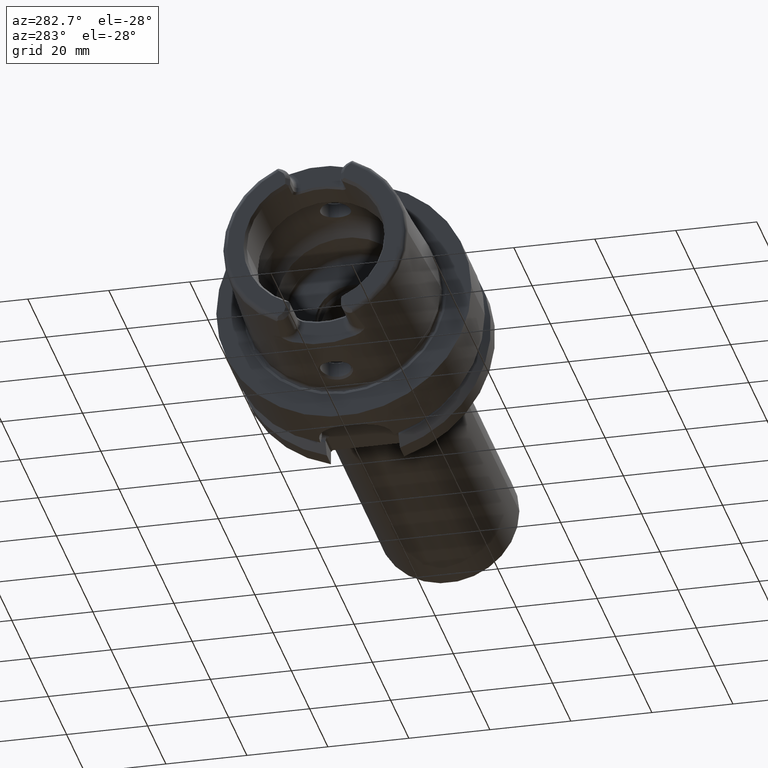
[diagram: clean part render]
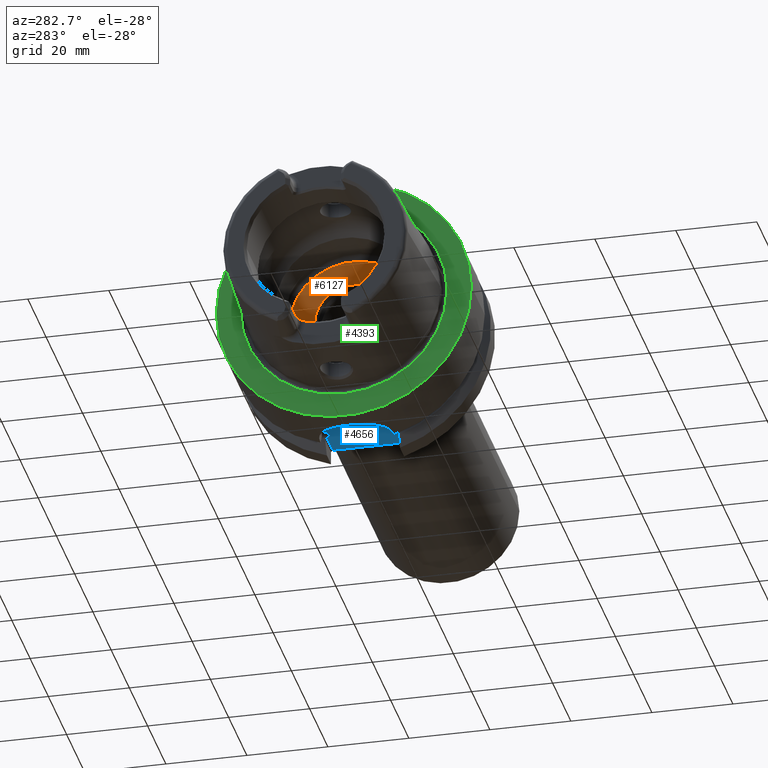
[diagram: same view with three faces highlighted in distinct colors, each labeled with its STEP entity id]
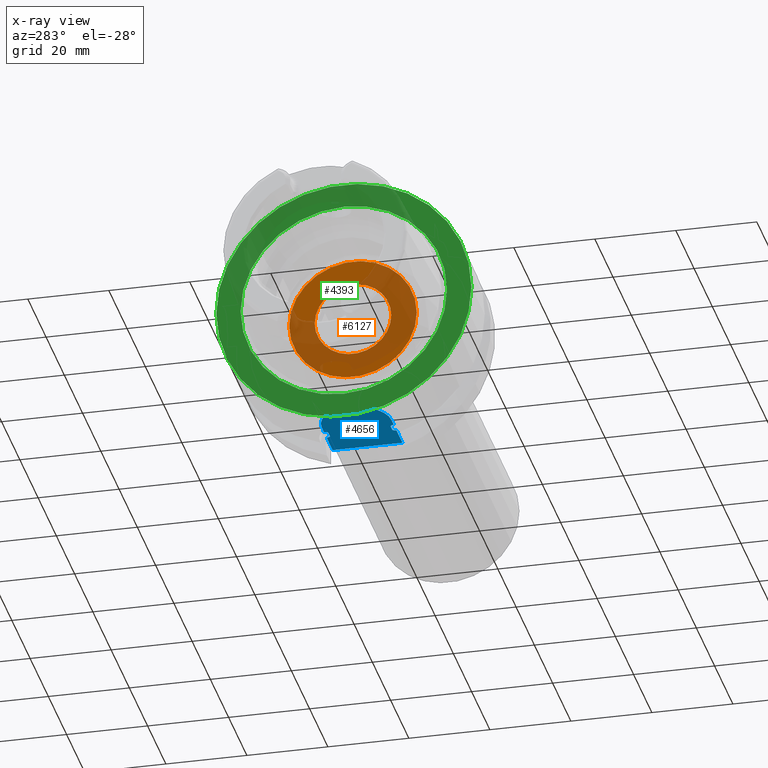
[diagram: x-ray of the same camera — body ghosted, the three highlighted faces saturated]
A machine part, auxiliary view with three faces highlighted in distinct colors.
The next image is the same camera in x-ray (body ghosted, the three faces saturated) — at least one of them is partly hidden behind the body in this view.
Their STEP definitions:

[orange] entity #6127 — the highlighted planar face has unit normal (1, 0, 0).
#2454=CARTESIAN_POINT('',(1.E1,0.E0,0.E0));
#2455=DIRECTION('',(1.E0,0.E0,0.E0));
#2456=DIRECTION('',(0.E0,1.E0,0.E0));
#2457=AXIS2_PLACEMENT_3D('',#2454,#2455,#2456);
#2464=CARTESIAN_POINT('',(1.E1,0.E0,0.E0));
#2465=DIRECTION('',(-1.E0,0.E0,0.E0));
#2466=DIRECTION('',(0.E0,1.E0,0.E0));
#2467=AXIS2_PLACEMENT_3D('',#2464,#2465,#2466);
#2474=CARTESIAN_POINT('',(1.E1,0.E0,0.E0));
#2475=DIRECTION('',(1.E0,0.E0,0.E0));
#2476=DIRECTION('',(0.E0,1.E0,0.E0));
#2477=AXIS2_PLACEMENT_3D('',#2474,#2475,#2476);
#2479=CARTESIAN_POINT('',(1.E1,0.E0,0.E0));
#2480=DIRECTION('',(1.E0,0.E0,0.E0));
#2481=DIRECTION('',(0.E0,-1.E0,0.E0));
#2482=AXIS2_PLACEMENT_3D('',#2479,#2480,#2481);
#2682=CARTESIAN_POINT('',(1.E1,1.575E1,0.E0));
#2684=VERTEX_POINT('',#2682);
#2686=CARTESIAN_POINT('',(1.E1,-1.575E1,0.E0));
#2688=VERTEX_POINT('',#2686);
#2933=CARTESIAN_POINT('',(1.E1,9.451175134595E0,0.E0));
#2934=CARTESIAN_POINT('',(1.E1,-9.451175134595E0,0.E0));
#2935=VERTEX_POINT('',#2933);
#2936=VERTEX_POINT('',#2934);
#6112=CARTESIAN_POINT('',(1.E1,0.E0,0.E0));
#6113=DIRECTION('',(1.E0,0.E0,0.E0));
#6114=DIRECTION('',(0.E0,-1.E0,0.E0));
#6115=AXIS2_PLACEMENT_3D('',#6112,#6113,#6114);
#6116=PLANE('',#6115);
#6117=ORIENTED_EDGE('',*,*,#6094,.T.);
#6118=ORIENTED_EDGE('',*,*,#6105,.F.);
#6119=EDGE_LOOP('',(#6117,#6118));
#6120=FACE_OUTER_BOUND('',#6119,.F.);
#6122=ORIENTED_EDGE('',*,*,#6121,.F.);
#6124=ORIENTED_EDGE('',*,*,#6123,.F.);
#6125=EDGE_LOOP('',(#6122,#6124));
#6126=FACE_BOUND('',#6125,.F.);
#6127=ADVANCED_FACE('',(#6120,#6126),#6116,.F.);
#2458=CIRCLE('',#2457,1.575E1);
#2468=CIRCLE('',#2467,1.575E1);
#2478=CIRCLE('',#2477,9.451175134595E0);
#2483=CIRCLE('',#2482,9.451175134595E0);
#6094=EDGE_CURVE('',#2684,#2688,#2458,.T.);
#6105=EDGE_CURVE('',#2684,#2688,#2468,.T.);
#6121=EDGE_CURVE('',#2935,#2936,#2478,.T.);
#6123=EDGE_CURVE('',#2936,#2935,#2483,.T.);

[blue] entity #4656 — the highlighted planar face has unit normal (0, 0, -1).
#1222=CARTESIAN_POINT('',(1.7125E1,7.7E0,-2.64E1));
#1223=CARTESIAN_POINT('',(1.709612257646E1,7.7E0,-2.64E1));
#1224=CARTESIAN_POINT('',(1.703809054195E1,7.708549788548E0,-2.64E1));
#1225=CARTESIAN_POINT('',(1.694576354836E1,7.752741855764E0,-2.64E1));
#1226=CARTESIAN_POINT('',(1.686145167985E1,7.821144618954E0,-2.64E1));
#1227=CARTESIAN_POINT('',(1.678169591401E1,7.910255407197E0,-2.64E1));
#1228=CARTESIAN_POINT('',(1.670585865658E1,8.018731508895E0,-2.64E1));
#1229=CARTESIAN_POINT('',(1.663386002384E1,8.144595739092E0,-2.64E1));
#1230=CARTESIAN_POINT('',(1.656565613315E1,8.286316729889E0,-2.64E1));
#1231=CARTESIAN_POINT('',(1.650080228847E1,8.443935370899E0,-2.64E1));
#1232=CARTESIAN_POINT('',(1.646027482334E1,8.558057187343E0,-2.64E1));
#1233=CARTESIAN_POINT('',(1.644062313526E1,8.6175E0,-2.64E1));
#1296=CARTESIAN_POINT('',(1.644062313526E1,-8.6175E0,-2.64E1));
#1297=CARTESIAN_POINT('',(1.646078603879E1,-8.556510852770E0,-2.64E1));
#1298=CARTESIAN_POINT('',(1.650227386064E1,-8.439948273349E0,-2.64E1));
#1299=CARTESIAN_POINT('',(1.656805348335E1,-8.280864278287E0,-2.64E1));
#1300=CARTESIAN_POINT('',(1.663684500818E1,-8.138886080904E0,-2.64E1));
#1301=CARTESIAN_POINT('',(1.670898389576E1,-8.013810014671E0,-2.64E1));
#1302=CARTESIAN_POINT('',(1.678453793855E1,-7.906721865662E0,-2.64E1));
#1303=CARTESIAN_POINT('',(1.686362062870E1,-7.819127635624E0,-2.64E1));
#1304=CARTESIAN_POINT('',(1.694730615110E1,-7.751879650101E0,-2.64E1));
#1305=CARTESIAN_POINT('',(1.703817130297E1,-7.708637437381E0,-2.64E1));
#1306=CARTESIAN_POINT('',(1.709608612766E1,-7.7E0,-2.64E1));
#1307=CARTESIAN_POINT('',(1.7125E1,-7.7E0,-2.64E1));
#1341=CARTESIAN_POINT('',(1.955937686474E1,8.6175E0,-2.64E1));
#1347=CARTESIAN_POINT('',(1.955937686474E1,8.6175E0,-2.64E1));
#1348=CARTESIAN_POINT('',(1.953933692943E1,8.556882809475E0,-2.64E1));
#1349=CARTESIAN_POINT('',(1.949803643853E1,8.440751828791E0,-2.64E1));
#1350=CARTESIAN_POINT('',(1.943198239289E1,8.280902876688E0,-2.64E1));
#1351=CARTESIAN_POINT('',(1.936289962713E1,8.138372043109E0,-2.64E1));
#1352=CARTESIAN_POINT('',(1.929044179409E1,8.012872381152E0,-2.64E1));
#1353=CARTESIAN_POINT('',(1.921473346325E1,7.905832703978E0,-2.64E1));
#1354=CARTESIAN_POINT('',(1.913579091836E1,7.818493807110E0,-2.64E1));
#1355=CARTESIAN_POINT('',(1.905155273254E1,7.751296731883E0,-2.64E1));
#1356=CARTESIAN_POINT('',(1.896325315553E1,7.709235333598E0,-2.64E1));
#1357=CARTESIAN_POINT('',(1.890455004185E1,7.7E0,-2.64E1));
#1358=CARTESIAN_POINT('',(1.8875E1,7.7E0,-2.64E1));
#1418=CARTESIAN_POINT('',(1.8875E1,-7.7E0,-2.64E1));
#1419=CARTESIAN_POINT('',(1.890473731311E1,-7.7E0,-2.64E1));
#1420=CARTESIAN_POINT('',(1.896439553552E1,-7.709074097953E0,-2.64E1));
#1421=CARTESIAN_POINT('',(1.905895356645E1,-7.755593365771E0,-2.64E1));
#1422=CARTESIAN_POINT('',(1.914506350406E1,-7.827325160610E0,-2.64E1));
#1423=CARTESIAN_POINT('',(1.922569730521E1,-7.919730067314E0,-2.64E1));
#1424=CARTESIAN_POINT('',(1.930098420168E1,-8.029803274102E0,-2.64E1));
#1425=CARTESIAN_POINT('',(1.937115269578E1,-8.154449512708E0,-2.64E1));
#1426=CARTESIAN_POINT('',(1.943699388158E1,-8.292566470765E0,-2.64E1));
#1427=CARTESIAN_POINT('',(1.949974575456E1,-8.445548604297E0,-2.64E1));
#1428=CARTESIAN_POINT('',(1.953984256144E1,-8.558412255131E0,-2.64E1));
#1429=CARTESIAN_POINT('',(1.955937686474E1,-8.6175E0,-2.64E1));
#1461=DIRECTION('',(1.E0,0.E0,0.E0));
#1462=VECTOR('',#1461,6.440623135263E0);
#1463=CARTESIAN_POINT('',(1.955937686474E1,8.6175E0,-2.64E1));
#1464=LINE('',#1463,#1462);
#1465=DIRECTION('',(-9.999999999999E-1,-2.676307863714E-7,-2.675980536163E-7));
#1466=VECTOR('',#1465,2.473123130251E0);
#1467=CARTESIAN_POINT('',(1.644062313526E1,8.6175E0,-2.64E1));
#1468=LINE('',#1467,#1466);
#1469=CARTESIAN_POINT('',(1.39675E1,-2.131628207280E-14,-2.640000139113E1));
#1470=DIRECTION('',(0.E0,0.E0,1.E0));
#1471=DIRECTION('',(-1.030668622693E-14,1.E0,0.E0));
#1472=AXIS2_PLACEMENT_3D('',#1469,#1470,#1471);
#1474=DIRECTION('',(9.999999999999E-1,-2.676237429886E-7,2.676050896565E-7));
#1475=VECTOR('',#1474,2.473123130989E0);
#1476=CARTESIAN_POINT('',(1.396750000427E1,-8.617499338134E0,
-2.640000066182E1));
#1477=LINE('',#1476,#1475);
#1478=DIRECTION('',(-1.E0,0.E0,0.E0));
#1479=VECTOR('',#1478,6.440623135263E0);
#1480=CARTESIAN_POINT('',(2.6E1,-8.6175E0,-2.64E1));
#1481=LINE('',#1480,#1479);
#1482=DIRECTION('',(1.E0,0.E0,0.E0));
#1483=VECTOR('',#1482,1.75E0);
#1484=CARTESIAN_POINT('',(1.7125E1,-7.7E0,-2.64E1));
#1485=LINE('',#1484,#1483);
#1495=DIRECTION('',(1.E0,0.E0,0.E0));
#1496=VECTOR('',#1495,1.75E0);
#1497=CARTESIAN_POINT('',(1.7125E1,7.7E0,-2.64E1));
#1498=LINE('',#1497,#1496);
#1700=DIRECTION('',(0.E0,-1.E0,0.E0));
#1701=VECTOR('',#1700,1.7235E1);
#1702=CARTESIAN_POINT('',(2.6E1,8.6175E0,-2.64E1));
#1703=LINE('',#1702,#1701);
#1873=CARTESIAN_POINT('',(1.644062313526E1,-8.6175E0,-2.64E1));
#1883=CARTESIAN_POINT('',(1.644062313526E1,8.6175E0,-2.64E1));
#2949=VERTEX_POINT('',#1883);
#2952=VERTEX_POINT('',#1873);
#2954=VERTEX_POINT('',#1341);
#2955=CARTESIAN_POINT('',(2.6E1,8.6175E0,-2.64E1));
#2957=VERTEX_POINT('',#2955);
#2960=CARTESIAN_POINT('',(2.6E1,-8.6175E0,-2.64E1));
#2962=VERTEX_POINT('',#2960);
#2963=CARTESIAN_POINT('',(1.955937686474E1,-8.6175E0,-2.64E1));
#2964=VERTEX_POINT('',#2963);
#2967=CARTESIAN_POINT('',(1.396750000427E1,-8.617499338134E0,
-2.640000066182E1));
#2968=VERTEX_POINT('',#2967);
#2973=CARTESIAN_POINT('',(1.396750000501E1,8.617499338116E0,-2.640000066180E1));
#2974=VERTEX_POINT('',#2973);
#3041=CARTESIAN_POINT('',(1.7125E1,-7.7E0,-2.64E1));
#3042=CARTESIAN_POINT('',(1.8875E1,-7.7E0,-2.64E1));
#3043=VERTEX_POINT('',#3041);
#3044=VERTEX_POINT('',#3042);
#3045=CARTESIAN_POINT('',(1.7125E1,7.7E0,-2.64E1));
#3046=CARTESIAN_POINT('',(1.8875E1,7.7E0,-2.64E1));
#3047=VERTEX_POINT('',#3045);
#3048=VERTEX_POINT('',#3046);
#4630=CARTESIAN_POINT('',(0.E0,0.E0,-2.64E1));
#4631=DIRECTION('',(0.E0,0.E0,-1.E0));
#4632=DIRECTION('',(1.E0,0.E0,0.E0));
#4633=AXIS2_PLACEMENT_3D('',#4630,#4631,#4632);
#4634=PLANE('',#4633);
#4635=ORIENTED_EDGE('',*,*,#4572,.F.);
#4636=ORIENTED_EDGE('',*,*,#4585,.T.);
#4638=ORIENTED_EDGE('',*,*,#4637,.F.);
#4639=ORIENTED_EDGE('',*,*,#4484,.T.);
#4641=ORIENTED_EDGE('',*,*,#4640,.T.);
#4643=ORIENTED_EDGE('',*,*,#4642,.T.);
#4645=ORIENTED_EDGE('',*,*,#4644,.T.);
#4646=ORIENTED_EDGE('',*,*,#4515,.T.);
#4648=ORIENTED_EDGE('',*,*,#4647,.T.);
#4649=ORIENTED_EDGE('',*,*,#4617,.T.);
#4651=ORIENTED_EDGE('',*,*,#4650,.F.);
#4653=ORIENTED_EDGE('',*,*,#4652,.F.);
#4654=EDGE_LOOP('',(#4635,#4636,#4638,#4639,#4641,#4643,#4645,#4646,#4648,#4649,
#4651,#4653));
#4655=FACE_OUTER_BOUND('',#4654,.F.);
#4656=ADVANCED_FACE('',(#4655),#4634,.T.);
#1234=B_SPLINE_CURVE_WITH_KNOTS('',3,(#1222,#1223,#1224,#1225,#1226,#1227,#1228,
#1229,#1230,#1231,#1232,#1233),.UNSPECIFIED.,.F.,.F.,(4,1,1,1,1,1,1,1,1,4),
(0.E0,1.111111111111E-1,2.222222222222E-1,3.333333333333E-1,4.444444444444E-1,
5.555555555556E-1,6.666666666667E-1,7.777777777778E-1,8.888888888889E-1,1.E0),
.UNSPECIFIED.);
#1308=B_SPLINE_CURVE_WITH_KNOTS('',3,(#1296,#1297,#1298,#1299,#1300,#1301,#1302,
#1303,#1304,#1305,#1306,#1307),.UNSPECIFIED.,.F.,.F.,(4,1,1,1,1,1,1,1,1,4),
(0.E0,1.111111111111E-1,2.222222222222E-1,3.333333333333E-1,4.444444444444E-1,
5.555555555556E-1,6.666666666667E-1,7.777777777778E-1,8.888888888889E-1,1.E0),
.UNSPECIFIED.);
#1359=B_SPLINE_CURVE_WITH_KNOTS('',3,(#1347,#1348,#1349,#1350,#1351,#1352,#1353,
#1354,#1355,#1356,#1357,#1358),.UNSPECIFIED.,.F.,.F.,(4,1,1,1,1,1,1,1,1,4),
(0.E0,1.111111111111E-1,2.222222222222E-1,3.333333333333E-1,4.444444444444E-1,
5.555555555556E-1,6.666666666667E-1,7.777777777778E-1,8.888888888889E-1,1.E0),
.UNSPECIFIED.);
#1430=B_SPLINE_CURVE_WITH_KNOTS('',3,(#1418,#1419,#1420,#1421,#1422,#1423,#1424,
#1425,#1426,#1427,#1428,#1429),.UNSPECIFIED.,.F.,.F.,(4,1,1,1,1,1,1,1,1,4),
(0.E0,1.111111111111E-1,2.222222222222E-1,3.333333333333E-1,4.444444444444E-1,
5.555555555556E-1,6.666666666667E-1,7.777777777778E-1,8.888888888889E-1,1.E0),
.UNSPECIFIED.);
#1473=CIRCLE('',#1472,8.617497420067E0);
#4484=EDGE_CURVE('',#3047,#2949,#1234,.T.);
#4515=EDGE_CURVE('',#2952,#3043,#1308,.T.);
#4572=EDGE_CURVE('',#2954,#2957,#1464,.T.);
#4585=EDGE_CURVE('',#2954,#3048,#1359,.T.);
#4617=EDGE_CURVE('',#3044,#2964,#1430,.T.);
#4637=EDGE_CURVE('',#3047,#3048,#1498,.T.);
#4640=EDGE_CURVE('',#2949,#2974,#1468,.T.);
#4642=EDGE_CURVE('',#2974,#2968,#1473,.T.);
#4644=EDGE_CURVE('',#2968,#2952,#1477,.T.);
#4647=EDGE_CURVE('',#3043,#3044,#1485,.T.);
#4650=EDGE_CURVE('',#2962,#2964,#1481,.T.);
#4652=EDGE_CURVE('',#2957,#2962,#1703,.T.);

[green] entity #4393 — the highlighted planar face has unit normal (1, 0, 0).
#1068=CARTESIAN_POINT('',(-1.421085471520E-14,0.E0,0.E0));
#1069=DIRECTION('',(1.E0,0.E0,0.E0));
#1070=DIRECTION('',(0.E0,1.E0,0.E0));
#1071=AXIS2_PLACEMENT_3D('',#1068,#1069,#1070);
#1073=CARTESIAN_POINT('',(-1.421085471520E-14,0.E0,0.E0));
#1074=DIRECTION('',(-1.E0,0.E0,0.E0));
#1075=DIRECTION('',(0.E0,1.E0,0.E0));
#1076=AXIS2_PLACEMENT_3D('',#1073,#1074,#1075);
#1078=CARTESIAN_POINT('',(0.E0,0.E0,0.E0));
#1079=DIRECTION('',(-1.E0,0.E0,0.E0));
#1080=DIRECTION('',(0.E0,-1.E0,0.E0));
#1081=AXIS2_PLACEMENT_3D('',#1078,#1079,#1080);
#1083=CARTESIAN_POINT('',(0.E0,0.E0,0.E0));
#1084=DIRECTION('',(-1.E0,0.E0,0.E0));
#1085=DIRECTION('',(0.E0,1.E0,0.E0));
#1086=AXIS2_PLACEMENT_3D('',#1083,#1084,#1085);
#2650=CARTESIAN_POINT('',(-1.421085471520E-14,3.15E1,0.E0));
#2651=CARTESIAN_POINT('',(-1.421085471520E-14,-3.15E1,0.E0));
#2652=VERTEX_POINT('',#2650);
#2653=VERTEX_POINT('',#2651);
#2678=CARTESIAN_POINT('',(0.E0,-2.549042414966E1,0.E0));
#2679=VERTEX_POINT('',#2678);
#2680=CARTESIAN_POINT('',(0.E0,2.549042414966E1,0.E0));
#2681=VERTEX_POINT('',#2680);
#4378=CARTESIAN_POINT('',(0.E0,0.E0,0.E0));
#4379=DIRECTION('',(1.E0,0.E0,0.E0));
#4380=DIRECTION('',(0.E0,-1.E0,0.E0));
#4381=AXIS2_PLACEMENT_3D('',#4378,#4379,#4380);
#4382=PLANE('',#4381);
#4384=ORIENTED_EDGE('',*,*,#4383,.T.);
#4386=ORIENTED_EDGE('',*,*,#4385,.F.);
#4387=EDGE_LOOP('',(#4384,#4386));
#4388=FACE_OUTER_BOUND('',#4387,.F.);
#4389=ORIENTED_EDGE('',*,*,#4373,.T.);
#4390=ORIENTED_EDGE('',*,*,#4357,.T.);
#4391=EDGE_LOOP('',(#4389,#4390));
#4392=FACE_BOUND('',#4391,.F.);
#4393=ADVANCED_FACE('',(#4388,#4392),#4382,.F.);
#1072=CIRCLE('',#1071,3.15E1);
#1077=CIRCLE('',#1076,3.15E1);
#1082=CIRCLE('',#1081,2.549042414966E1);
#1087=CIRCLE('',#1086,2.549042414966E1);
#4357=EDGE_CURVE('',#2681,#2679,#1087,.T.);
#4373=EDGE_CURVE('',#2679,#2681,#1082,.T.);
#4383=EDGE_CURVE('',#2652,#2653,#1072,.T.);
#4385=EDGE_CURVE('',#2652,#2653,#1077,.T.);